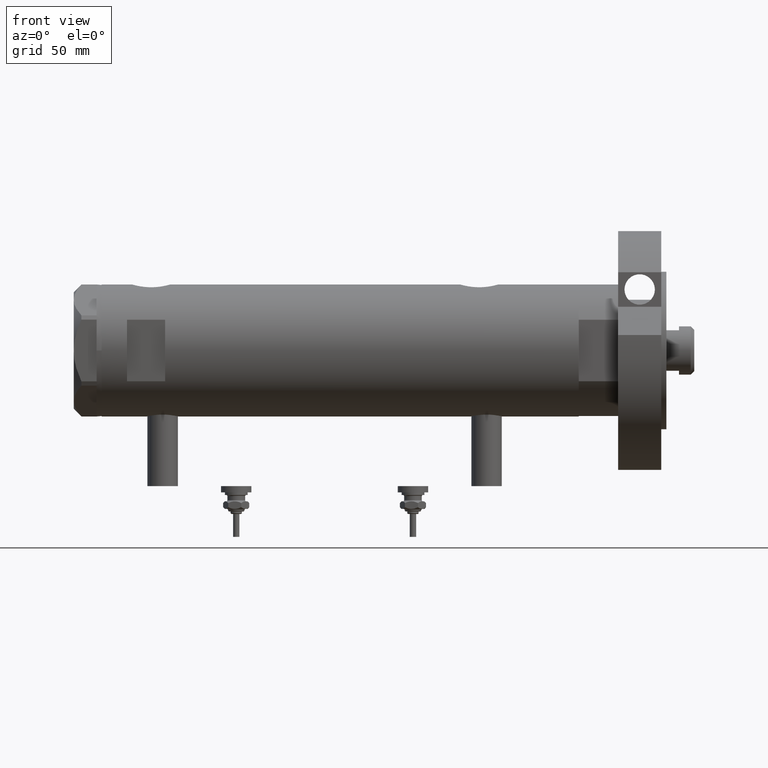
[diagram: clean part render]
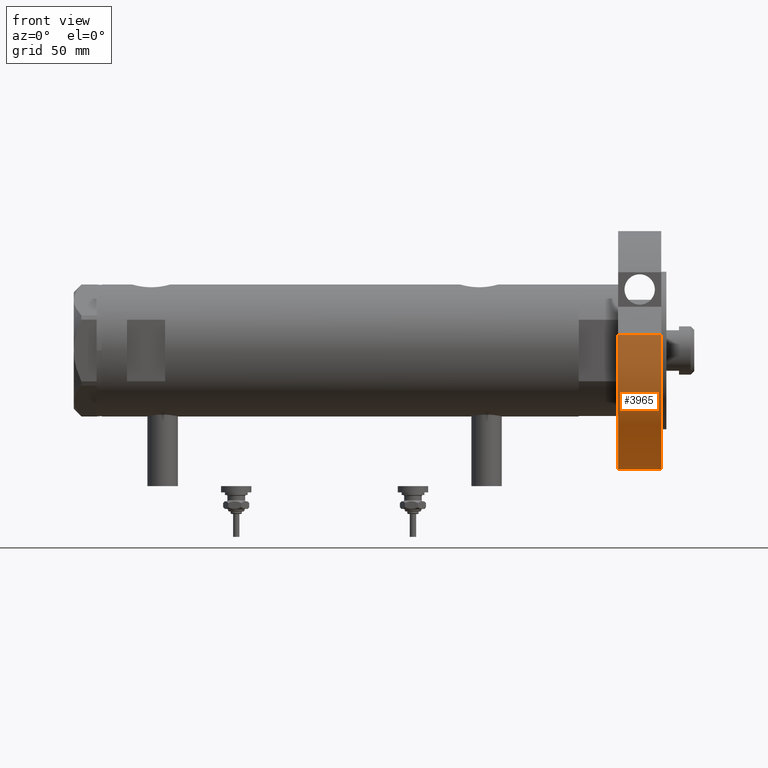
[diagram: same view with one face highlighted and labeled with its STEP entity id]
A machine part, front view. The second image highlights one B-rep face of the part: STEP entity #3965.
In plain terms, the highlighted cylindrical surface (partial cylindrical patch) has radius 47 mm, axis along (-1, -0, 0).
Its self-contained STEP definition (entity closure, byte-faithful):
#573 = CIRCLE ( 'NONE', #5109, 46.99999999999999289 ) ;
#882 = ORIENTED_EDGE ( 'NONE', *, *, #1471, .F. ) ;
#1058 = DIRECTION ( 'NONE',  ( 1.000000000000000000, 0.000000000000000000, 0.000000000000000000 ) ) ;
#1258 = CYLINDRICAL_SURFACE ( 'NONE', #5373, 46.99999999999999289 ) ;
#1393 = EDGE_LOOP ( 'NONE', ( #4687, #882, #6792, #4608 ) ) ;
#1471 = EDGE_CURVE ( 'NONE', #1602, #4695, #2886, .T. ) ;
#1602 = VERTEX_POINT ( 'NONE', #4233 ) ;
#1917 = DIRECTION ( 'NONE',  ( -0.000000000000000000, -0.000000000000000000, -1.000000000000000000 ) ) ;
#2414 = DIRECTION ( 'NONE',  ( -0.000000000000000000, -0.000000000000000000, 1.000000000000000000 ) ) ;
#2641 = CARTESIAN_POINT ( 'NONE',  ( 6.092310621118299352, 46.60347359688769586, 0.000000000000000000 ) ) ;
#2778 = LINE ( 'NONE', #4607, #2907 ) ;
#2864 = EDGE_CURVE ( 'NONE', #7910, #1602, #4377, .T. ) ;
#2886 = CIRCLE ( 'NONE', #7234, 46.99999999999999289 ) ;
#2907 = VECTOR ( 'NONE', #5251, 1000.000000000000000 ) ;
#3117 = EDGE_CURVE ( 'NONE', #4695, #7624, #2778, .T. ) ;
#3469 = DIRECTION ( 'NONE',  ( 0.000000000000000000, 0.000000000000000000, 1.000000000000000000 ) ) ;
#3685 = CARTESIAN_POINT ( 'NONE',  ( 6.092310621118299352, 46.60347359688769586, 0.000000000000000000 ) ) ;
#3965 = ADVANCED_FACE ( 'NONE', ( #4398 ), #1258, .T. ) ;
#4153 = CARTESIAN_POINT ( 'NONE',  ( 0.000000000000000000, 0.000000000000000000, 0.000000000000000000 ) ) ;
#4233 = CARTESIAN_POINT ( 'NONE',  ( 6.092310621118299352, 46.60347359688769586, 17.00000000000000000 ) ) ;
#4377 = LINE ( 'NONE', #3685, #5229 ) ;
#4398 = FACE_OUTER_BOUND ( 'NONE', #1393, .T. ) ;
#4487 = CARTESIAN_POINT ( 'NONE',  ( -46.99999999999999289, 0.000000000000000000, 17.00000000000000000 ) ) ;
#4607 = CARTESIAN_POINT ( 'NONE',  ( -46.99999999999999289, 0.000000000000000000, 17.00000000000000000 ) ) ;
#4608 = ORIENTED_EDGE ( 'NONE', *, *, #4977, .T. ) ;
#4687 = ORIENTED_EDGE ( 'NONE', *, *, #3117, .F. ) ;
#4695 = VERTEX_POINT ( 'NONE', #4487 ) ;
#4977 = EDGE_CURVE ( 'NONE', #7910, #7624, #573, .T. ) ;
#5109 = AXIS2_PLACEMENT_3D ( 'NONE', #4153, #6591, #1058 ) ;
#5229 = VECTOR ( 'NONE', #2414, 1000.000000000000000 ) ;
#5251 = DIRECTION ( 'NONE',  ( -0.000000000000000000, -0.000000000000000000, -1.000000000000000000 ) ) ;
#5373 = AXIS2_PLACEMENT_3D ( 'NONE', #5630, #1917, #6829 ) ;
#5435 = CARTESIAN_POINT ( 'NONE',  ( 0.000000000000000000, 0.000000000000000000, 17.00000000000000000 ) ) ;
#5630 = CARTESIAN_POINT ( 'NONE',  ( 0.000000000000000000, 0.000000000000000000, 17.00000000000000000 ) ) ;
#5908 = DIRECTION ( 'NONE',  ( 1.000000000000000000, 0.000000000000000000, 0.000000000000000000 ) ) ;
#5941 = CARTESIAN_POINT ( 'NONE',  ( -46.99999999999999289, 0.000000000000000000, 0.000000000000000000 ) ) ;
#6591 = DIRECTION ( 'NONE',  ( 0.000000000000000000, 0.000000000000000000, 1.000000000000000000 ) ) ;
#6792 = ORIENTED_EDGE ( 'NONE', *, *, #2864, .F. ) ;
#6829 = DIRECTION ( 'NONE',  ( -1.000000000000000000, 0.000000000000000000, 0.000000000000000000 ) ) ;
#7234 = AXIS2_PLACEMENT_3D ( 'NONE', #5435, #3469, #5908 ) ;
#7624 = VERTEX_POINT ( 'NONE', #5941 ) ;
#7910 = VERTEX_POINT ( 'NONE', #2641 ) ;